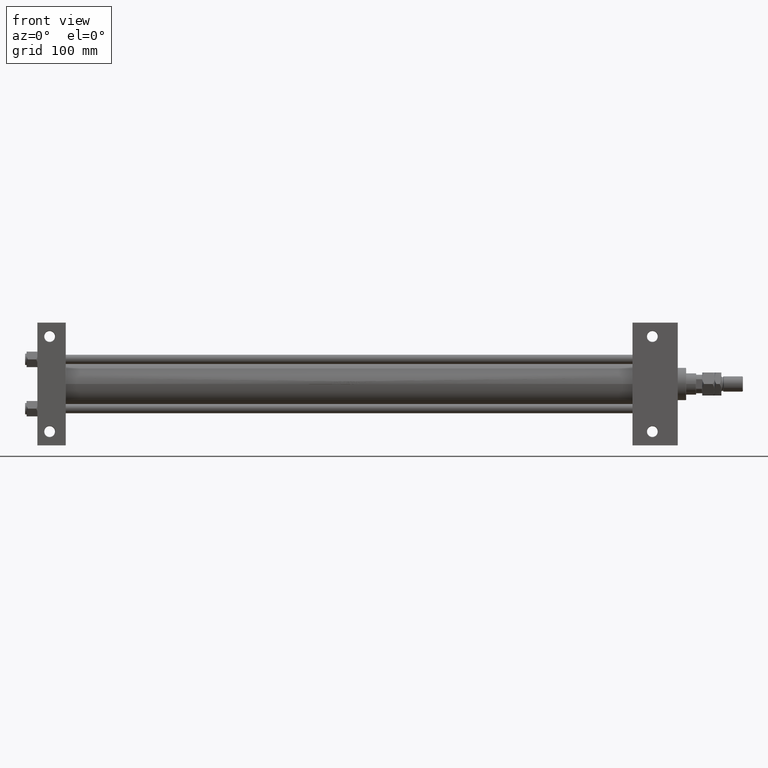
[diagram: clean part render]
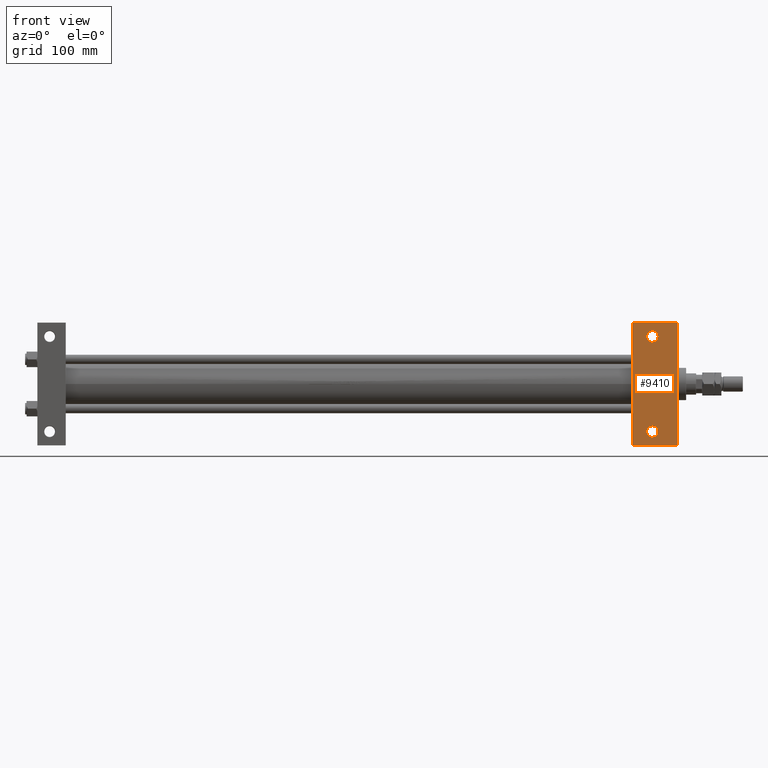
[diagram: same view with one face highlighted and labeled with its STEP entity id]
A machine part, front view. The second image highlights one B-rep face of the part: STEP entity #9410.
In plain terms, the highlighted planar face has unit normal (0, -1, 0).
Its self-contained STEP definition (entity closure, byte-faithful):
#1838 = DIRECTION ( 'NONE',  ( 0.000000000000000000, -1.000000000000000000, 0.000000000000000000 ) ) ;
#3149 = EDGE_CURVE ( 'NONE', #7582, #44850, #8308, .T. ) ;
#3422 = EDGE_CURVE ( 'NONE', #44850, #43044, #15102, .T. ) ;
#4562 = EDGE_CURVE ( 'NONE', #33196, #7582, #22012, .T. ) ;
#4771 = CARTESIAN_POINT ( 'NONE',  ( 809.4995000000000118, -62.00000000000000000, -45.00000000000000000 ) ) ;
#5252 = VECTOR ( 'NONE', #8098, 1000.000000000000000 ) ;
#5501 = CIRCLE ( 'NONE', #43649, 7.499500000000103306 ) ;
#5564 = ORIENTED_EDGE ( 'NONE', *, *, #3422, .T. ) ;
#6071 = LINE ( 'NONE', #17533, #9305 ) ;
#6368 = EDGE_CURVE ( 'NONE', #15342, #13313, #21138, .T. ) ;
#6475 = ORIENTED_EDGE ( 'NONE', *, *, #6368, .T. ) ;
#7367 = DIRECTION ( 'NONE',  ( 0.000000000000000000, -1.000000000000000000, 0.000000000000000000 ) ) ;
#7582 = VERTEX_POINT ( 'NONE', #48159 ) ;
#8098 = DIRECTION ( 'NONE',  ( -1.000000000000000000, 4.704334850106600725E-16, -0.000000000000000000 ) ) ;
#8308 = LINE ( 'NONE', #41675, #33079 ) ;
#8547 = DIRECTION ( 'NONE',  ( -0.000000000000000000, -0.000000000000000000, 1.000000000000000000 ) ) ;
#8650 = EDGE_CURVE ( 'NONE', #47633, #39604, #29954, .T. ) ;
#9086 = EDGE_CURVE ( 'NONE', #33196, #43044, #6071, .T. ) ;
#9090 = EDGE_LOOP ( 'NONE', ( #15478, #15766 ) ) ;
#9305 = VECTOR ( 'NONE', #1838, 1000.000000000000000 ) ;
#9410 = ADVANCED_FACE ( 'NONE', ( #16732, #31879, #28152 ), #13475, .T. ) ;
#10157 = CARTESIAN_POINT ( 'NONE',  ( 801.9999999999998863, -62.00000000000000000, -45.00000000000000000 ) ) ;
#11623 = AXIS2_PLACEMENT_3D ( 'NONE', #10157, #48212, #36785 ) ;
#12225 = CARTESIAN_POINT ( 'NONE',  ( 794.5004999999998745, 62.00000000000000000, -45.00000000000000000 ) ) ;
#12355 = ORIENTED_EDGE ( 'NONE', *, *, #42083, .T. ) ;
#13108 = CARTESIAN_POINT ( 'NONE',  ( 776.0000000000000000, 79.99999999999990052, -45.00000000000000000 ) ) ;
#13313 = VERTEX_POINT ( 'NONE', #4771 ) ;
#13475 = PLANE ( 'NONE',  #47479 ) ;
#15102 = LINE ( 'NONE', #23507, #5252 ) ;
#15342 = VERTEX_POINT ( 'NONE', #32319 ) ;
#15478 = ORIENTED_EDGE ( 'NONE', *, *, #8650, .T. ) ;
#15766 = ORIENTED_EDGE ( 'NONE', *, *, #43446, .T. ) ;
#16732 = FACE_BOUND ( 'NONE', #9090, .T. ) ;
#17278 = ORIENTED_EDGE ( 'NONE', *, *, #4562, .T. ) ;
#17533 = CARTESIAN_POINT ( 'NONE',  ( 776.0000000000000000, 45.00000000000001421, -45.00000000000000000 ) ) ;
#17930 = DIRECTION ( 'NONE',  ( -0.000000000000000000, -0.000000000000000000, 1.000000000000000000 ) ) ;
#18517 = EDGE_LOOP ( 'NONE', ( #6475, #12355 ) ) ;
#18784 = DIRECTION ( 'NONE',  ( 1.000000000000000000, 0.000000000000000000, 0.000000000000000000 ) ) ;
#20308 = CARTESIAN_POINT ( 'NONE',  ( 835.0000000000000000, -80.00000000000009948, -45.00000000000000000 ) ) ;
#21138 = CIRCLE ( 'NONE', #11623, 7.499500000000103306 ) ;
#21641 = EDGE_LOOP ( 'NONE', ( #39125, #17278, #41980, #5564 ) ) ;
#21901 = DIRECTION ( 'NONE',  ( -1.000000000000000000, 0.000000000000000000, 0.000000000000000000 ) ) ;
#21960 = CARTESIAN_POINT ( 'NONE',  ( 776.0000000000000000, -80.00000000000007105, -45.00000000000000000 ) ) ;
#22012 = LINE ( 'NONE', #44144, #46472 ) ;
#22831 = AXIS2_PLACEMENT_3D ( 'NONE', #27592, #34108, #38552 ) ;
#23507 = CARTESIAN_POINT ( 'NONE',  ( 776.0000000000000000, -80.00000000000007105, -45.00000000000000000 ) ) ;
#25384 = CARTESIAN_POINT ( 'NONE',  ( 801.9999999999998863, 62.00000000000000000, -45.00000000000000000 ) ) ;
#26285 = CIRCLE ( 'NONE', #38957, 7.499500000000103306 ) ;
#27592 = CARTESIAN_POINT ( 'NONE',  ( 801.9999999999998863, 62.00000000000000000, -45.00000000000000000 ) ) ;
#28152 = FACE_OUTER_BOUND ( 'NONE', #21641, .T. ) ;
#29954 = CIRCLE ( 'NONE', #22831, 7.499500000000103306 ) ;
#31879 = FACE_BOUND ( 'NONE', #18517, .T. ) ;
#32319 = CARTESIAN_POINT ( 'NONE',  ( 794.5004999999998745, -62.00000000000000000, -45.00000000000000000 ) ) ;
#33079 = VECTOR ( 'NONE', #7367, 1000.000000000000000 ) ;
#33196 = VERTEX_POINT ( 'NONE', #13108 ) ;
#34108 = DIRECTION ( 'NONE',  ( -0.000000000000000000, -0.000000000000000000, 1.000000000000000000 ) ) ;
#34450 = CARTESIAN_POINT ( 'NONE',  ( 801.9999999999998863, -62.00000000000000000, -45.00000000000000000 ) ) ;
#36012 = CARTESIAN_POINT ( 'NONE',  ( 809.4995000000000118, 62.00000000000000000, -45.00000000000000000 ) ) ;
#36113 = DIRECTION ( 'NONE',  ( 0.000000000000000000, 0.000000000000000000, -1.000000000000000000 ) ) ;
#36785 = DIRECTION ( 'NONE',  ( -1.000000000000000000, 0.000000000000000000, 0.000000000000000000 ) ) ;
#38552 = DIRECTION ( 'NONE',  ( -1.000000000000000000, 0.000000000000000000, 0.000000000000000000 ) ) ;
#38957 = AXIS2_PLACEMENT_3D ( 'NONE', #25384, #17930, #21901 ) ;
#39125 = ORIENTED_EDGE ( 'NONE', *, *, #9086, .F. ) ;
#39604 = VERTEX_POINT ( 'NONE', #36012 ) ;
#41675 = CARTESIAN_POINT ( 'NONE',  ( 835.0000000000000000, 45.00000000000001421, -45.00000000000000000 ) ) ;
#41980 = ORIENTED_EDGE ( 'NONE', *, *, #3149, .T. ) ;
#42083 = EDGE_CURVE ( 'NONE', #13313, #15342, #5501, .T. ) ;
#43044 = VERTEX_POINT ( 'NONE', #21960 ) ;
#43319 = CARTESIAN_POINT ( 'NONE',  ( 835.0000000000000000, 45.00000000000001421, -45.00000000000000000 ) ) ;
#43446 = EDGE_CURVE ( 'NONE', #39604, #47633, #26285, .T. ) ;
#43649 = AXIS2_PLACEMENT_3D ( 'NONE', #34450, #8547, #45643 ) ;
#44144 = CARTESIAN_POINT ( 'NONE',  ( 776.0000000000000000, 79.99999999999990052, -45.00000000000000000 ) ) ;
#44850 = VERTEX_POINT ( 'NONE', #20308 ) ;
#45643 = DIRECTION ( 'NONE',  ( -1.000000000000000000, 0.000000000000000000, 0.000000000000000000 ) ) ;
#46472 = VECTOR ( 'NONE', #18784, 1000.000000000000000 ) ;
#47479 = AXIS2_PLACEMENT_3D ( 'NONE', #43319, #36113, #47795 ) ;
#47633 = VERTEX_POINT ( 'NONE', #12225 ) ;
#47795 = DIRECTION ( 'NONE',  ( -1.000000000000000000, 0.000000000000000000, -0.000000000000000000 ) ) ;
#48159 = CARTESIAN_POINT ( 'NONE',  ( 835.0000000000000000, 79.99999999999990052, -45.00000000000000000 ) ) ;
#48212 = DIRECTION ( 'NONE',  ( -0.000000000000000000, -0.000000000000000000, 1.000000000000000000 ) ) ;